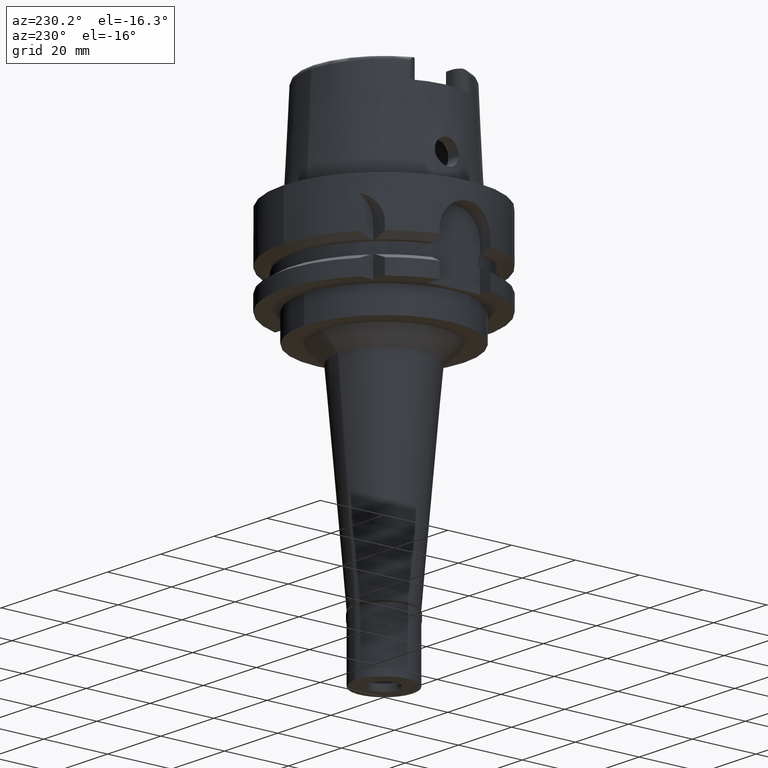
[diagram: clean part render]
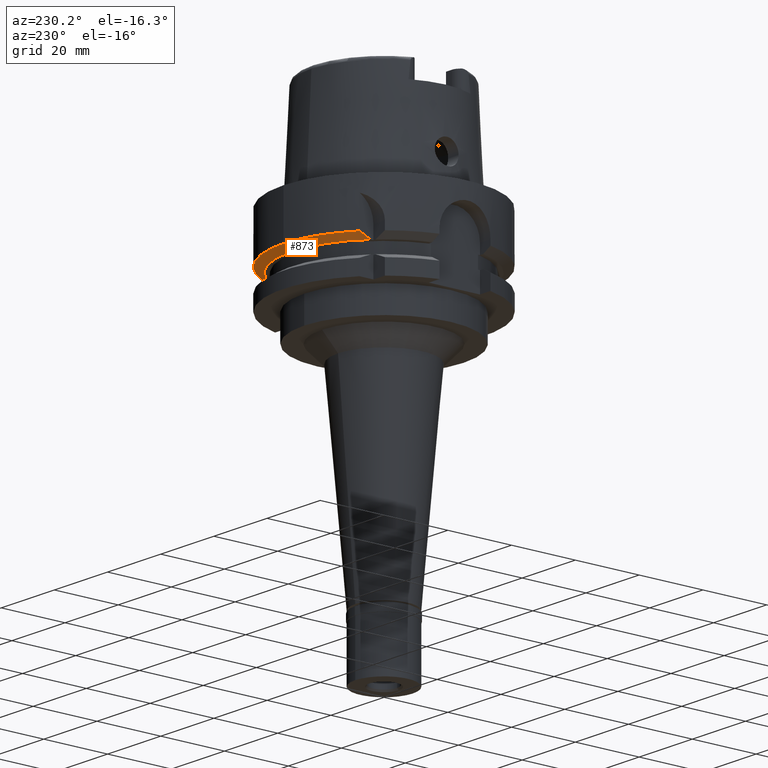
[diagram: same view with one face highlighted and labeled with its STEP entity id]
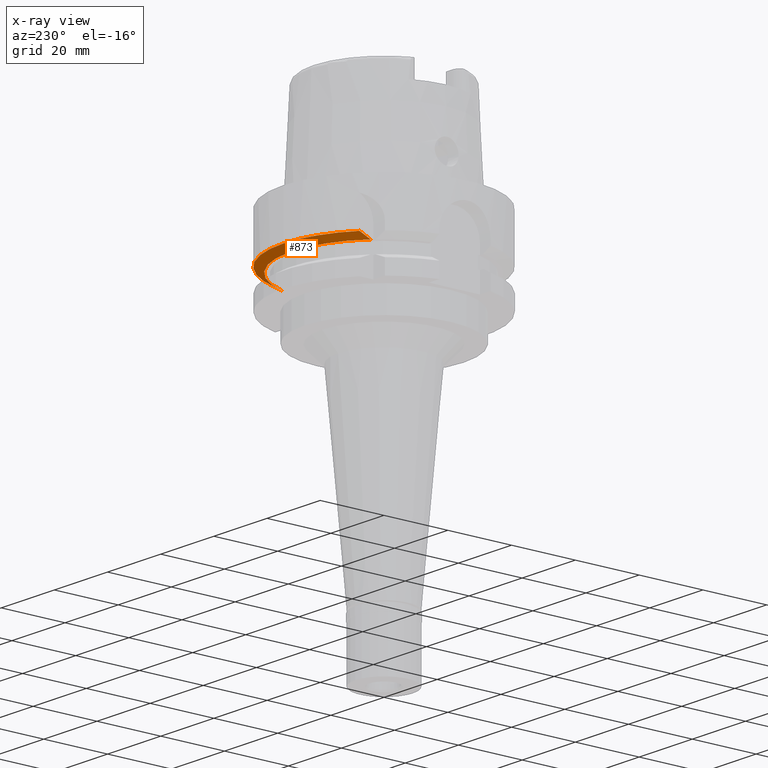
[diagram: x-ray of the same camera — body ghosted, the highlighted face saturated]
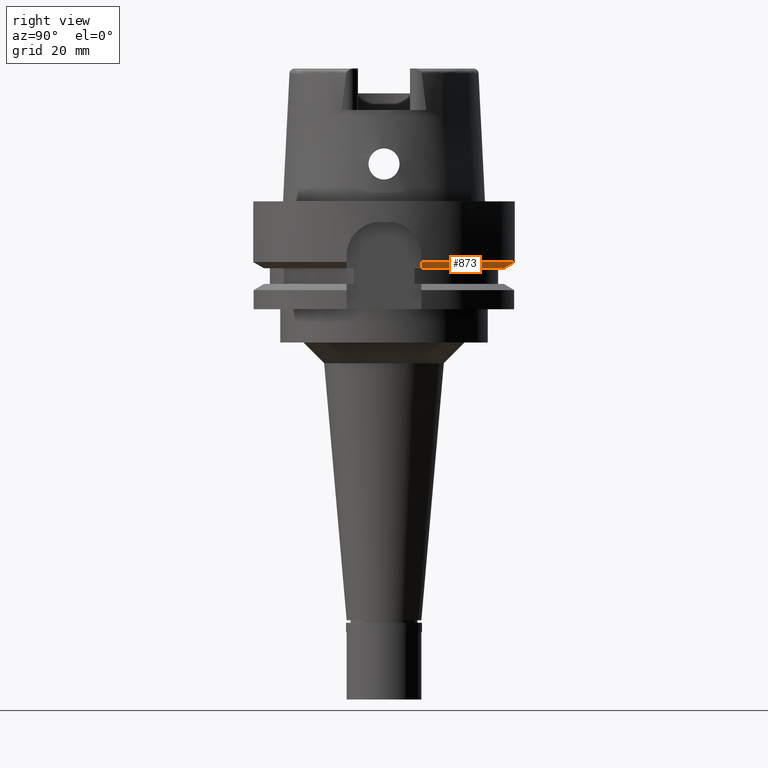
[diagram: same view with one face highlighted and labeled with its STEP entity id]
A machine part, auxiliary view. The second image highlights one B-rep face of the part: STEP entity #873.
The next image is the same camera in x-ray: the body ghosted, the highlighted face saturated — about 2% of this face is hidden behind the body in this view.
A second angle (right view) of the same face is appended — the face is thin or edge-on in the first view.
In plain terms, the highlighted conical surface has half-angle 60 deg.
Its self-contained STEP definition (entity closure, byte-faithful):
#25 = DIRECTION ( 'NONE',  ( 0.0000000000000000000, 0.0000000000000000000, 1.000000000000000000 ) ) ;
#65 = EDGE_CURVE ( 'NONE', #3783, #3559, #4727, .T. ) ;
#301 = CARTESIAN_POINT ( 'NONE',  ( -19.99999697632999940, 24.33618953219000147, -14.62251175975000095 ) ) ;
#360 = CARTESIAN_POINT ( 'NONE',  ( -20.00000000000000000, 23.12606476112103238, -15.16228535714003200 ) ) ;
#543 = CARTESIAN_POINT ( 'NONE',  ( 0.0000000000000000000, 31.50000000000000000, -14.62250092523999889 ) ) ;
#873 = ADVANCED_FACE ( 'NONE', ( #5256 ), #4319, .T. ) ;
#875 = CARTESIAN_POINT ( 'NONE',  ( 30.18691773962000013, 8.999999854531999688, -14.62250209852999916 ) ) ;
#937 = VERTEX_POINT ( 'NONE', #4884 ) ;
#1258 = EDGE_CURVE ( 'NONE', #937, #2203, #5299, .T. ) ;
#1440 = DIRECTION ( 'NONE',  ( 0.0000000000000000000, 0.0000000000000000000, 1.000000000000000000 ) ) ;
#1449 = DIRECTION ( 'NONE',  ( 0.0000000000000000000, 0.0000000000000000000, 1.000000000000000000 ) ) ;
#1530 = ORIENTED_EDGE ( 'NONE', *, *, #2852, .T. ) ;
#1864 = AXIS2_PLACEMENT_3D ( 'NONE', #2915, #25, #5028 ) ;
#1895 = EDGE_CURVE ( 'NONE', #2203, #3783, #4512, .T. ) ;
#2063 = CARTESIAN_POINT ( 'NONE',  ( 27.46036354012000302, 8.999999272439000109, -16.12500000000000000 ) ) ;
#2203 = VERTEX_POINT ( 'NONE', #543 ) ;
#2270 = ORIENTED_EDGE ( 'NONE', *, *, #65, .F. ) ;
#2724 = CARTESIAN_POINT ( 'NONE',  ( 0.0000000000000000000, 0.0000000000000000000, -15.37375046262000033 ) ) ;
#2810 = CARTESIAN_POINT ( 'NONE',  ( -19.99998591006000126, 20.85848287970000214, -16.12500000000000000 ) ) ;
#2852 = EDGE_CURVE ( 'NONE', #937, #3400, #3420, .T. ) ;
#2915 = CARTESIAN_POINT ( 'NONE',  ( 0.0000000000000000000, 0.0000000000000000000, -16.12500000000000000 ) ) ;
#3005 = CIRCLE ( 'NONE', #1864, 28.89759526419000224 ) ;
#3028 = AXIS2_PLACEMENT_3D ( 'NONE', #5180, #4273, #3538 ) ;
#3110 = DIRECTION ( 'NONE',  ( 0.0000000000000000000, 1.000000000000000000, 0.0000000000000000000 ) ) ;
#3256 = ORIENTED_EDGE ( 'NONE', *, *, #3470, .T. ) ;
#3263 = AXIS2_PLACEMENT_3D ( 'NONE', #2724, #1449, #3110 ) ;
#3363 = AXIS2_PLACEMENT_3D ( 'NONE', #5216, #1440, #3497 ) ;
#3375 = CARTESIAN_POINT ( 'NONE',  ( 28.33125883899881003, 8.999998543017845520, -15.64719075774906010 ) ) ;
#3400 = VERTEX_POINT ( 'NONE', #3802 ) ;
#3420 = B_SPLINE_CURVE_WITH_KNOTS ( 'NONE', 3,
 ( #875, #4659, #3375, #2063 ),
 .UNSPECIFIED., .F., .F.,
 ( 4, 4 ),
 ( 0.0000000000000000000, 1.000000000000000000 ),
 .UNSPECIFIED. ) ;
#3470 = EDGE_CURVE ( 'NONE', #3400, #3559, #3005, .T. ) ;
#3497 = DIRECTION ( 'NONE',  ( 0.9583148474999051425, 0.2857142857143015191, 0.0000000000000000000 ) ) ;
#3525 = EDGE_LOOP ( 'NONE', ( #4783, #3756, #1530, #3256, #2270 ) ) ;
#3538 = DIRECTION ( 'NONE',  ( 0.0000000000000000000, 1.000000000000000000, 0.0000000000000000000 ) ) ;
#3559 = VERTEX_POINT ( 'NONE', #4777 ) ;
#3756 = ORIENTED_EDGE ( 'NONE', *, *, #1258, .F. ) ;
#3783 = VERTEX_POINT ( 'NONE', #4906 ) ;
#3802 = CARTESIAN_POINT ( 'NONE',  ( 27.46036354012000302, 8.999999272439000109, -16.12500000000000000 ) ) ;
#4273 = DIRECTION ( 'NONE',  ( 0.0000000000000000000, 0.0000000000000000000, 1.000000000000000000 ) ) ;
#4319 = CONICAL_SURFACE ( 'NONE', #3263, 30.19879763209999979, 1.047197551196400456 ) ;
#4512 = CIRCLE ( 'NONE', #3028, 31.50000000000000000 ) ;
#4659 = CARTESIAN_POINT ( 'NONE',  ( 29.24010044468122871, 8.999999709189729913, -15.14635918071179610 ) ) ;
#4727 = B_SPLINE_CURVE_WITH_KNOTS ( 'NONE', 3,
 ( #301, #360, #5391, #2810 ),
 .UNSPECIFIED., .F., .F.,
 ( 4, 4 ),
 ( 0.0000000000000000000, 1.000000000000000000 ),
 .UNSPECIFIED. ) ;
#4777 = CARTESIAN_POINT ( 'NONE',  ( -19.99998591006000126, 20.85848287970000214, -16.12500000000000000 ) ) ;
#4783 = ORIENTED_EDGE ( 'NONE', *, *, #1895, .F. ) ;
#4884 = CARTESIAN_POINT ( 'NONE',  ( 30.18691773962000013, 8.999999854531999688, -14.62250209852999916 ) ) ;
#4906 = CARTESIAN_POINT ( 'NONE',  ( -19.99999697632999940, 24.33618953219000147, -14.62251175975000095 ) ) ;
#5028 = DIRECTION ( 'NONE',  ( 0.0000000000000000000, 1.000000000000000000, 0.0000000000000000000 ) ) ;
#5180 = CARTESIAN_POINT ( 'NONE',  ( 0.0000000000000000000, 0.0000000000000000000, -14.62250092523999889 ) ) ;
#5216 = CARTESIAN_POINT ( 'NONE',  ( 0.0000000000000000000, 0.0000000000000000000, -14.62250092523999889 ) ) ;
#5256 = FACE_OUTER_BOUND ( 'NONE', #3525, .T. ) ;
#5299 = CIRCLE ( 'NONE', #3363, 31.49999999999999645 ) ;
#5391 = CARTESIAN_POINT ( 'NONE',  ( -20.00000000000000000, 21.96682921029103497, -15.66311477055670132 ) ) ;